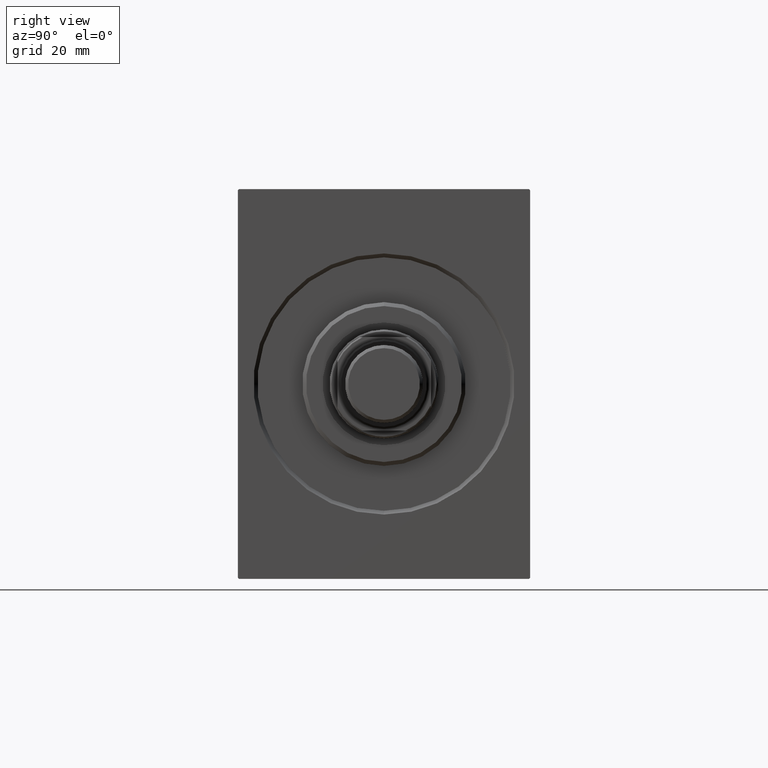
[diagram: clean part render]
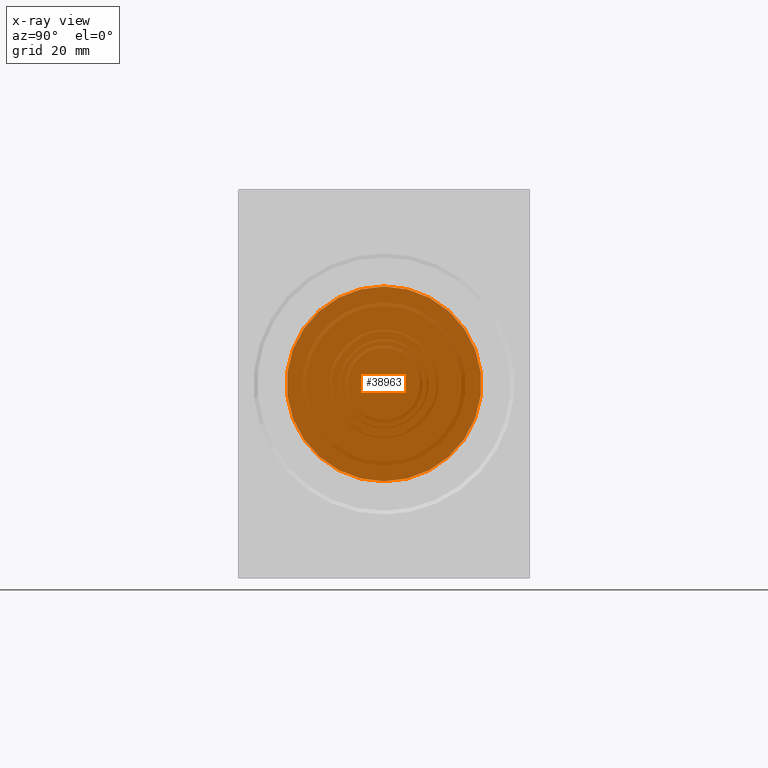
[diagram: x-ray — body ghosted, one internal face saturated and labeled with its STEP entity id]
A machine part, right view, then the same camera in x-ray: the body is ghosted and one INTERNAL B-rep face — a face not visible from any outside direction — is saturated and labeled: STEP entity #38963.
In plain terms, the highlighted planar face has unit normal (1, 0, -0).
Its self-contained STEP definition (entity closure, byte-faithful):
#5029 = PLANE ( 'NONE',  #43237 ) ;
#5659 = EDGE_CURVE ( 'NONE', #29019, #41913, #27511, .T. ) ;
#5754 = AXIS2_PLACEMENT_3D ( 'NONE', #18665, #21308, #11656 ) ;
#8139 = CARTESIAN_POINT ( 'NONE',  ( 84.00000000000000000, 0.000000000000000000, 0.000000000000000000 ) ) ;
#10273 = AXIS2_PLACEMENT_3D ( 'NONE', #8139, #34705, #24388 ) ;
#11656 = DIRECTION ( 'NONE',  ( 0.000000000000000000, 0.000000000000000000, 1.000000000000000000 ) ) ;
#18007 = ORIENTED_EDGE ( 'NONE', *, *, #5659, .T. ) ;
#18665 = CARTESIAN_POINT ( 'NONE',  ( 84.00000000000000000, 0.000000000000000000, 0.000000000000000000 ) ) ;
#21308 = DIRECTION ( 'NONE',  ( -1.000000000000000000, 0.000000000000000000, 0.000000000000000000 ) ) ;
#24388 = DIRECTION ( 'NONE',  ( 0.000000000000000000, 0.000000000000000000, 1.000000000000000000 ) ) ;
#24585 = CARTESIAN_POINT ( 'NONE',  ( 84.00000000000000000, 0.000000000000000000, 0.000000000000000000 ) ) ;
#25261 = EDGE_LOOP ( 'NONE', ( #42191, #18007 ) ) ;
#27511 = CIRCLE ( 'NONE', #5754, 25.00000000000000000 ) ;
#27877 = DIRECTION ( 'NONE',  ( -1.000000000000000000, 0.000000000000000000, 0.000000000000000000 ) ) ;
#29019 = VERTEX_POINT ( 'NONE', #33001 ) ;
#29966 = CIRCLE ( 'NONE', #10273, 25.00000000000000000 ) ;
#31911 = CARTESIAN_POINT ( 'NONE',  ( 84.00000000000000000, 0.000000000000000000, 25.00000000000000000 ) ) ;
#33001 = CARTESIAN_POINT ( 'NONE',  ( 84.00000000000000000, 3.061616997868382254E-15, -25.00000000000000000 ) ) ;
#34705 = DIRECTION ( 'NONE',  ( -1.000000000000000000, 0.000000000000000000, 0.000000000000000000 ) ) ;
#35118 = FACE_OUTER_BOUND ( 'NONE', #25261, .T. ) ;
#35529 = EDGE_CURVE ( 'NONE', #41913, #29019, #29966, .T. ) ;
#38396 = DIRECTION ( 'NONE',  ( 0.000000000000000000, 0.000000000000000000, 1.000000000000000000 ) ) ;
#38963 = ADVANCED_FACE ( 'NONE', ( #35118 ), #5029, .T. ) ;
#41913 = VERTEX_POINT ( 'NONE', #31911 ) ;
#42191 = ORIENTED_EDGE ( 'NONE', *, *, #35529, .T. ) ;
#43237 = AXIS2_PLACEMENT_3D ( 'NONE', #24585, #27877, #38396 ) ;